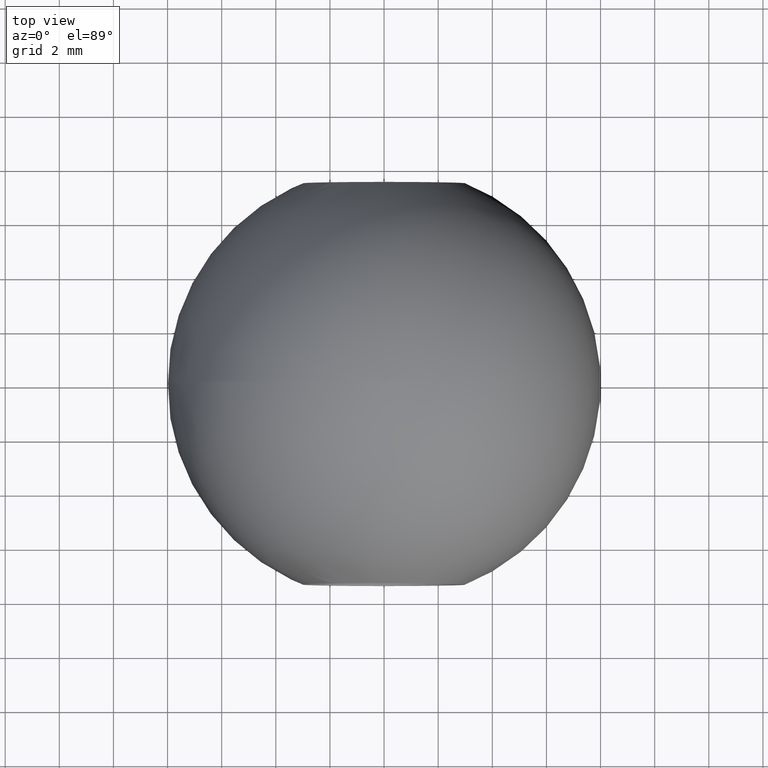
[diagram: clean part render]
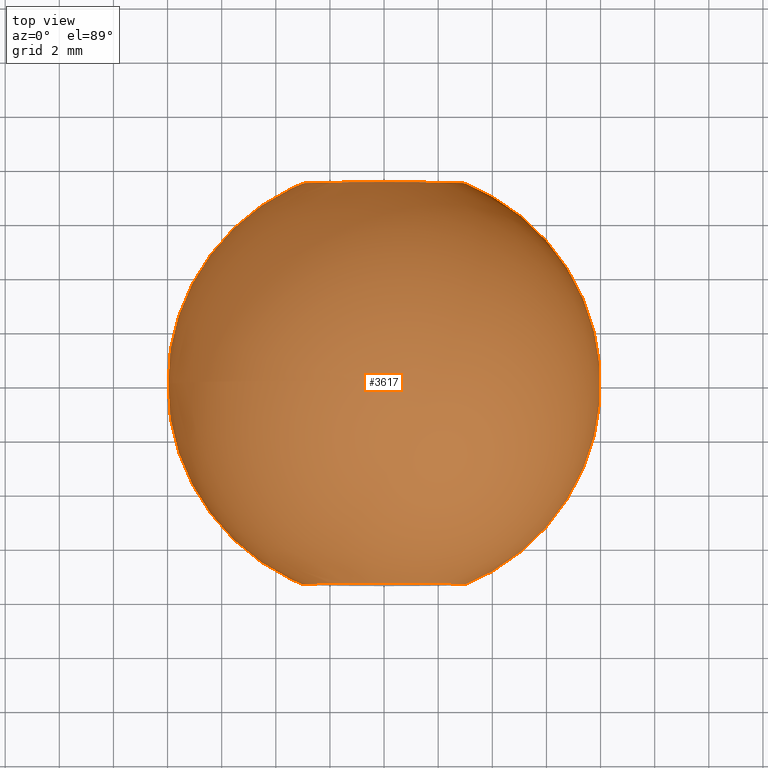
[diagram: same view with one face highlighted and labeled with its STEP entity id]
A machine part, top view. The second image highlights one B-rep face of the part: STEP entity #3617.
In plain terms, the highlighted spherical surface has radius 8 mm.
Its self-contained STEP definition (entity closure, byte-faithful):
#504 = ORIENTED_EDGE ( 'NONE', *, *, #3419, .T. ) ;
#932 = CARTESIAN_POINT ( 'NONE',  ( 1.836970198721029600E-015, -7.416198487095663000, 3.000000000000000400 ) ) ;
#1552 = CIRCLE ( 'NONE', #2708, 3.000000000000000400 ) ;
#2027 = DIRECTION ( 'NONE',  ( 0.0000000000000000000, 0.0000000000000000000, 1.000000000000000000 ) ) ;
#2141 = DIRECTION ( 'NONE',  ( 1.000000000000000000, 0.0000000000000000000, 0.0000000000000000000 ) ) ;
#2197 = CARTESIAN_POINT ( 'NONE',  ( 1.836970198721029600E-015, 7.416198487095663000, 3.000000000000000400 ) ) ;
#2708 = AXIS2_PLACEMENT_3D ( 'NONE', #3793, #3187, #7229 ) ;
#2847 = CARTESIAN_POINT ( 'NONE',  ( 0.0000000000000000000, 0.0000000000000000000, 0.0000000000000000000 ) ) ;
#2953 = EDGE_LOOP ( 'NONE', ( #5602 ) ) ;
#3134 = EDGE_CURVE ( 'NONE', #7590, #7590, #3158, .T. ) ;
#3158 = CIRCLE ( 'NONE', #5023, 3.000000000000000400 ) ;
#3187 = DIRECTION ( 'NONE',  ( -0.0000000000000000000, 1.000000000000000000, -0.0000000000000000000 ) ) ;
#3419 = EDGE_CURVE ( 'NONE', #7915, #7915, #1552, .T. ) ;
#3617 = ADVANCED_FACE ( 'NONE', ( #7889, #7020 ), #4754, .T. ) ;
#3793 = CARTESIAN_POINT ( 'NONE',  ( 1.836970198721029600E-015, -7.416198487095663000, 0.0000000000000000000 ) ) ;
#4754 = SPHERICAL_SURFACE ( 'NONE', #8419, 8.000000000000000000 ) ;
#5023 = AXIS2_PLACEMENT_3D ( 'NONE', #6164, #5356, #2027 ) ;
#5356 = DIRECTION ( 'NONE',  ( -0.0000000000000000000, 1.000000000000000000, -0.0000000000000000000 ) ) ;
#5602 = ORIENTED_EDGE ( 'NONE', *, *, #3134, .F. ) ;
#6164 = CARTESIAN_POINT ( 'NONE',  ( 1.836970198721029600E-015, 7.416198487095663000, 0.0000000000000000000 ) ) ;
#7020 = FACE_OUTER_BOUND ( 'NONE', #8319, .T. ) ;
#7229 = DIRECTION ( 'NONE',  ( 0.0000000000000000000, 0.0000000000000000000, 1.000000000000000000 ) ) ;
#7590 = VERTEX_POINT ( 'NONE', #2197 ) ;
#7691 = DIRECTION ( 'NONE',  ( 0.0000000000000000000, 0.0000000000000000000, -1.000000000000000000 ) ) ;
#7889 = FACE_OUTER_BOUND ( 'NONE', #2953, .T. ) ;
#7915 = VERTEX_POINT ( 'NONE', #932 ) ;
#8319 = EDGE_LOOP ( 'NONE', ( #504 ) ) ;
#8419 = AXIS2_PLACEMENT_3D ( 'NONE', #2847, #7691, #2141 ) ;